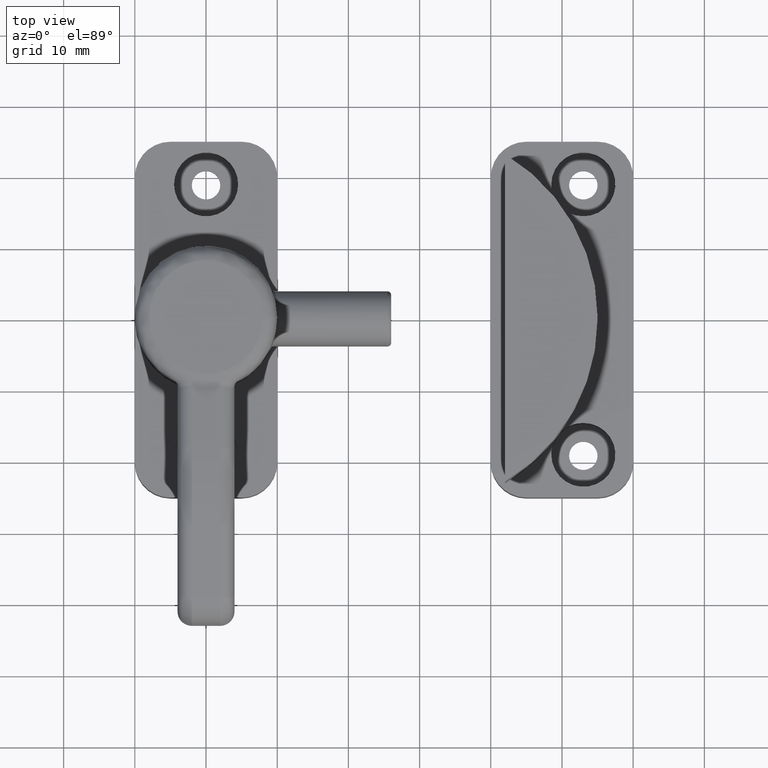
[diagram: clean part render]
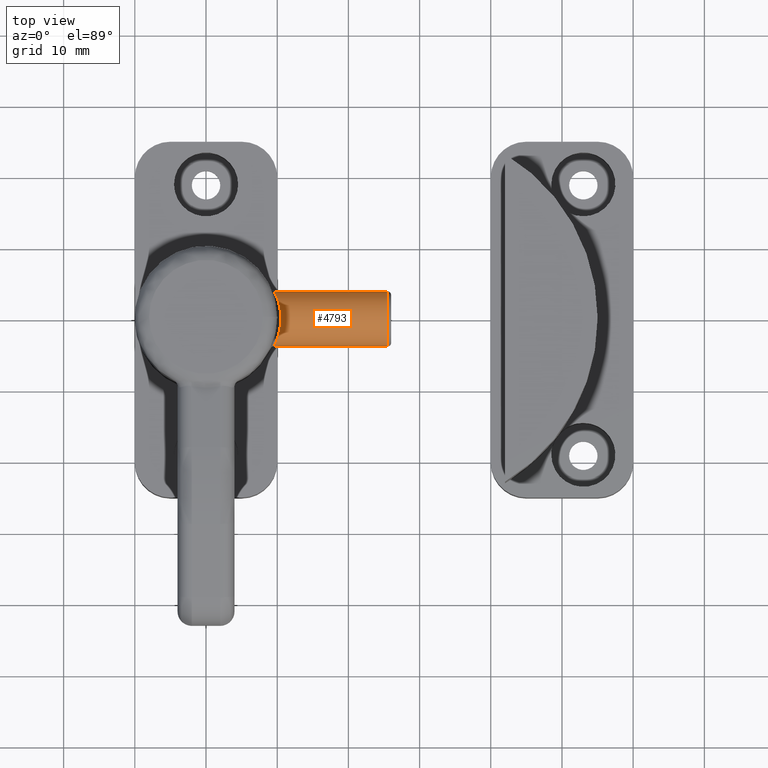
[diagram: same view with one face highlighted and labeled with its STEP entity id]
A machine part, top view. The second image highlights one B-rep face of the part: STEP entity #4793.
In plain terms, the highlighted cylindrical surface (edge-blend (fillet) strip) has radius 3.85 mm, axis along (-1, 0, 0).
Its self-contained STEP definition (entity closure, byte-faithful):
#4180=CARTESIAN_POINT('',(19.556542261717851,-3.849999999999997,15.232021481581006));
#4181=VERTEX_POINT('',#4180);
#4449=CARTESIAN_POINT('',(19.556542261717851,3.849999999999992,15.232021481581024));
#4450=VERTEX_POINT('',#4449);
#4561=CARTESIAN_POINT('',(20.499999999999929,-2.510526E-015,19.082021481581013));
#4562=VERTEX_POINT('',#4561);
#4570=CARTESIAN_POINT('',(20.499999999999929,-2.510526E-015,19.082021481581013));
#4571=CARTESIAN_POINT('',(20.499999999999929,0.350975528435098,19.082021481581013));
#4572=CARTESIAN_POINT('',(20.454479320689217,1.043357964386386,18.986282950902076));
#4573=CARTESIAN_POINT('',(20.256895194213570,2.073962792569941,18.543041591916534));
#4574=CARTESIAN_POINT('',(20.017334942280428,2.809110184480059,17.921190994291713));
#4575=CARTESIAN_POINT('',(19.788524540129202,3.373378944992081,17.145940137273175));
#4576=CARTESIAN_POINT('',(19.611503811260690,3.745775056026955,16.316112427025089));
#4577=CARTESIAN_POINT('',(19.556542261717851,3.849999999999992,15.601345632237633));
#4578=CARTESIAN_POINT('',(19.556542261717851,3.849999999999992,15.232021481581024));
#4579=B_SPLINE_CURVE_WITH_KNOTS('',3,(#4570,#4571,#4572,#4573,#4574,#4575,#4576,#4577,#4578),.UNSPECIFIED.,.F.,.U.,(4,1,1,1,1,1,4),(0.0,1.055965644349157,2.083854018758522,3.384543903538609,3.983723530577167,5.024445068067460,6.135615457811396),.UNSPECIFIED.);
#4580=EDGE_CURVE('',#4562,#4450,#4579,.T.);
#4677=CARTESIAN_POINT('',(19.556542261717851,-3.849999999999997,15.232021481581006));
#4678=CARTESIAN_POINT('',(19.556542261717851,-3.849999999999997,15.582432034255806));
#4679=CARTESIAN_POINT('',(19.606618330876060,-3.754805858930129,16.271423202536276));
#4680=CARTESIAN_POINT('',(19.771531235506401,-3.410550440029598,17.075498416417453));
#4681=CARTESIAN_POINT('',(19.995801961000751,-2.867370726946834,17.859775923400047));
#4682=CARTESIAN_POINT('',(20.239109620199059,-2.143095397891105,18.501162919961704));
#4683=CARTESIAN_POINT('',(20.449835541958436,-1.088915492849568,18.976738776427815));
#4684=CARTESIAN_POINT('',(20.499999999999929,-0.372400053790986,19.082021481581013));
#4685=CARTESIAN_POINT('',(20.499999999999929,-2.510526E-015,19.082021481581013));
#4686=B_SPLINE_CURVE_WITH_KNOTS('',3,(#4677,#4678,#4679,#4680,#4681,#4682,#4683,#4684,#4685),.UNSPECIFIED.,.F.,.U.,(4,1,1,1,1,1,4),(0.0,1.054266087414233,2.073940689569292,2.644000380454417,3.978807924412062,5.015191365175340,6.135616377111083),.UNSPECIFIED.);
#4687=EDGE_CURVE('',#4181,#4562,#4686,.T.);
#4708=CARTESIAN_POINT('',(35.499999968871407,-3.849999999999999,15.232021481581006));
#4709=VERTEX_POINT('',#4708);
#4716=CARTESIAN_POINT('',(19.556542261717851,-3.849999999999997,15.232021481581006));
#4717=DIRECTION('',(1.0,0.0,0.0));
#4718=VECTOR('',#4717,15.943457707153556);
#4719=LINE('',#4716,#4718);
#4720=EDGE_CURVE('',#4181,#4709,#4719,.T.);
#4768=CARTESIAN_POINT('',(35.499999978871408,-4.347496E-015,15.232021481581000));
#4769=DIRECTION('',(-1.0,1.224647E-016,0.0));
#4770=DIRECTION('',(0.0,0.0,-1.0));
#4771=AXIS2_PLACEMENT_3D('',#4768,#4769,#4770);
#4772=CYLINDRICAL_SURFACE('',#4771,3.850000000000001);
#4773=ORIENTED_EDGE('',*,*,#4720,.T.);
#4774=CARTESIAN_POINT('',(35.499999968871407,3.849999999999990,15.232021481581024));
#4775=VERTEX_POINT('',#4774);
#4776=CARTESIAN_POINT('',(35.499999968871407,-4.347496E-015,15.232021481581011));
#4777=DIRECTION('',(-1.0,1.224647E-016,0.0));
#4778=DIRECTION('',(-1.224647E-016,-1.0,0.0));
#4779=AXIS2_PLACEMENT_3D('',#4776,#4777,#4778);
#4780=CIRCLE('',#4779,3.850000000000001);
#4781=EDGE_CURVE('',#4709,#4775,#4780,.T.);
#4782=ORIENTED_EDGE('',*,*,#4781,.T.);
#4783=CARTESIAN_POINT('',(19.556542261717851,3.849999999999992,15.232021481581024));
#4784=DIRECTION('',(1.0,0.0,0.0));
#4785=VECTOR('',#4784,15.943457707153556);
#4786=LINE('',#4783,#4785);
#4787=EDGE_CURVE('',#4450,#4775,#4786,.T.);
#4788=ORIENTED_EDGE('',*,*,#4787,.F.);
#4789=ORIENTED_EDGE('',*,*,#4580,.F.);
#4790=ORIENTED_EDGE('',*,*,#4687,.F.);
#4791=EDGE_LOOP('',(#4773,#4782,#4788,#4789,#4790));
#4792=FACE_OUTER_BOUND('',#4791,.T.);
#4793=ADVANCED_FACE('',(#4792),#4772,.T.);